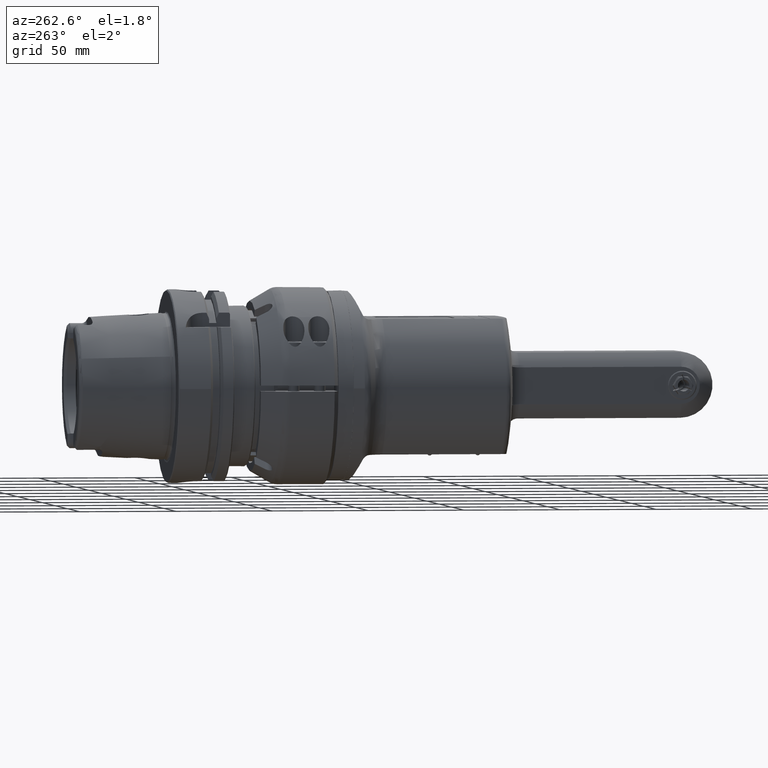
[diagram: clean part render]
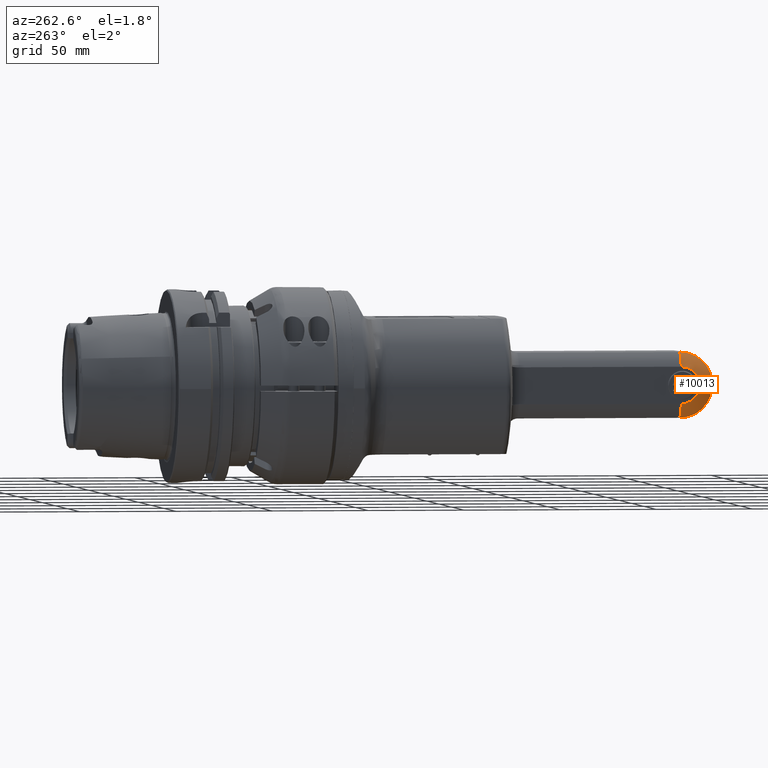
[diagram: same view with one face highlighted and labeled with its STEP entity id]
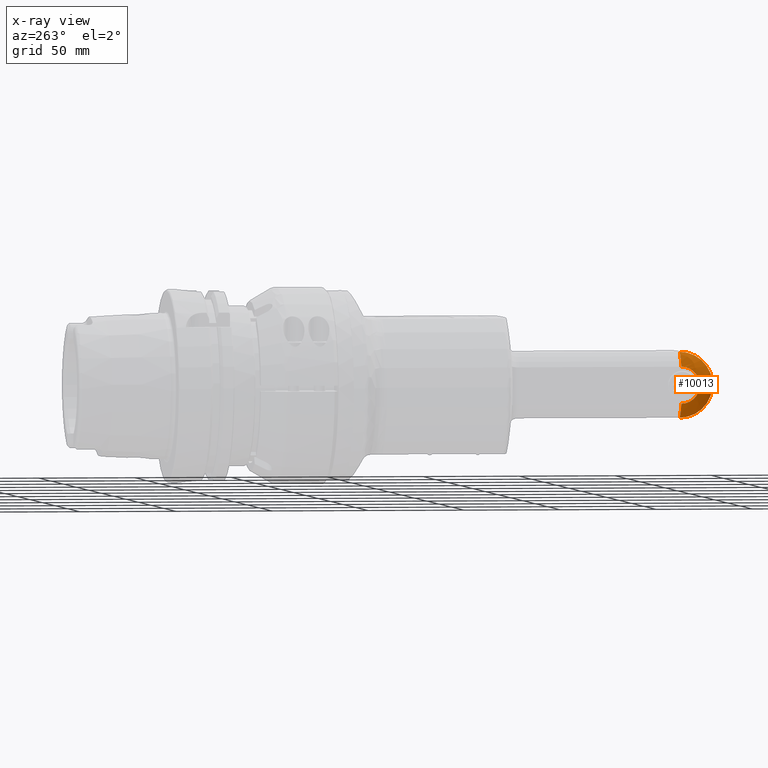
[diagram: x-ray of the same camera — body ghosted, the highlighted face saturated]
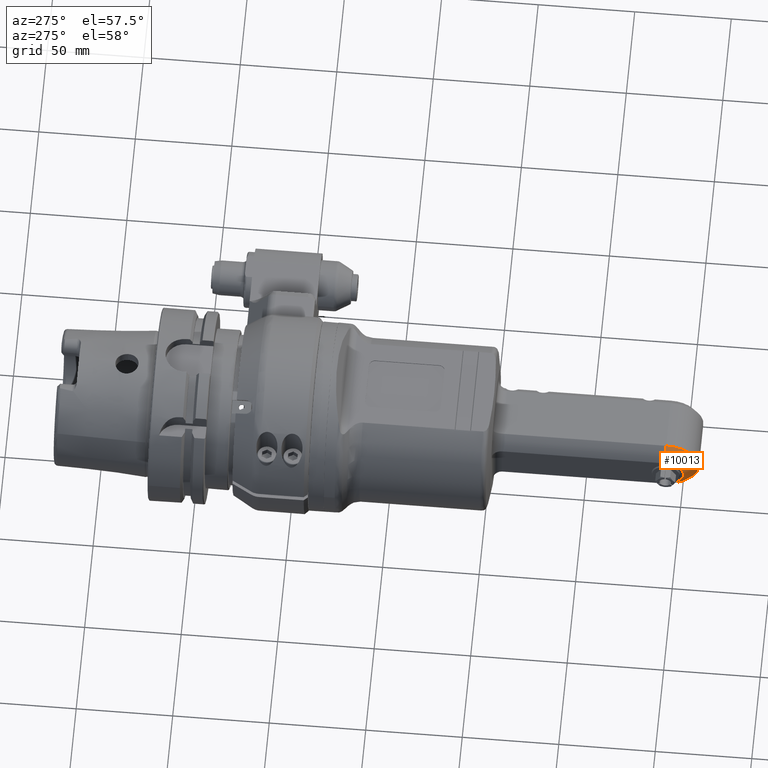
[diagram: same view with one face highlighted and labeled with its STEP entity id]
A machine part, auxiliary view. The second image highlights one B-rep face of the part: STEP entity #10013.
The next image is the same camera in x-ray: the body ghosted, the highlighted face saturated — about 0% of this face is hidden behind the body in this view.
A second angle (auxiliary view) of the same face is appended — the face is thin or edge-on in the first view.
In plain terms, the highlighted spherical surface has radius 21.5 mm.
Its self-contained STEP definition (entity closure, byte-faithful):
#21=SPHERICAL_SURFACE('',#10988,21.5);
#1123=FACE_OUTER_BOUND('',#1756,.T.);
#1756=EDGE_LOOP('',(#8715,#8716,#8717,#8718));
#2242=CIRCLE('',#10904,21.5);
#2247=CIRCLE('',#10919,9.575359001103);
#2276=CIRCLE('',#10989,21.5);
#2277=CIRCLE('',#10990,17.);
#4675=VERTEX_POINT('',#58529);
#4676=VERTEX_POINT('',#58531);
#4698=VERTEX_POINT('',#58966);
#4775=VERTEX_POINT('',#59248);
#5989=EDGE_CURVE('',#4676,#4675,#2242,.T.);
#6022=EDGE_CURVE('',#4698,#4675,#2247,.T.);
#6137=EDGE_CURVE('',#4698,#4775,#2276,.T.);
#6138=EDGE_CURVE('',#4775,#4676,#2277,.T.);
#8715=ORIENTED_EDGE('',*,*,#6022,.F.);
#8716=ORIENTED_EDGE('',*,*,#6137,.T.);
#8717=ORIENTED_EDGE('',*,*,#6138,.T.);
#8718=ORIENTED_EDGE('',*,*,#5989,.T.);
#10013=ADVANCED_FACE('',(#1123),#21,.T.);
#10904=AXIS2_PLACEMENT_3D('',#58532,#13081,#13082);
#10919=AXIS2_PLACEMENT_3D('',#58968,#13123,#13124);
#10988=AXIS2_PLACEMENT_3D('',#59247,#13332,#13333);
#10989=AXIS2_PLACEMENT_3D('',#59249,#13334,#13335);
#10990=AXIS2_PLACEMENT_3D('',#59250,#13336,#13337);
#13081=DIRECTION('center_axis',(1.,0.,0.));
#13082=DIRECTION('ref_axis',(0.,-0.612206817725014,0.790697674418618));
#13123=DIRECTION('center_axis',(0.,-1.,0.));
#13124=DIRECTION('ref_axis',(2.374570764574E-14,0.,-1.));
#13332=DIRECTION('center_axis',(0.,-0.895348837209307,0.445365534935003));
#13333=DIRECTION('ref_axis',(0.,-0.445365534935003,-0.895348837209307));
#13334=DIRECTION('center_axis',(1.,0.,0.));
#13335=DIRECTION('ref_axis',(0.,-0.895348837209307,-0.445365534935003));
#13336=DIRECTION('center_axis',(0.,-1.,0.));
#13337=DIRECTION('ref_axis',(0.,0.,-1.));
#58529=CARTESIAN_POINT('',(170.5,-19.25,9.575359001103));
#58531=CARTESIAN_POINT('',(170.5,-13.16244658109,17.));
#58532=CARTESIAN_POINT('Origin',(170.5,0.,-2.84217094304E-14));
#58966=CARTESIAN_POINT('',(170.5,-19.25,-9.575359001103));
#58968=CARTESIAN_POINT('Origin',(170.5,-19.25,-2.84217094304E-14));
#59247=CARTESIAN_POINT('Origin',(170.5,0.,-2.84217094304E-14));
#59248=CARTESIAN_POINT('',(170.5,-13.16244658109,-17.));
#59249=CARTESIAN_POINT('Origin',(170.5,0.,-2.84217094304E-14));
#59250=CARTESIAN_POINT('Origin',(170.5,-13.16244658109,1.616051774822E-14));